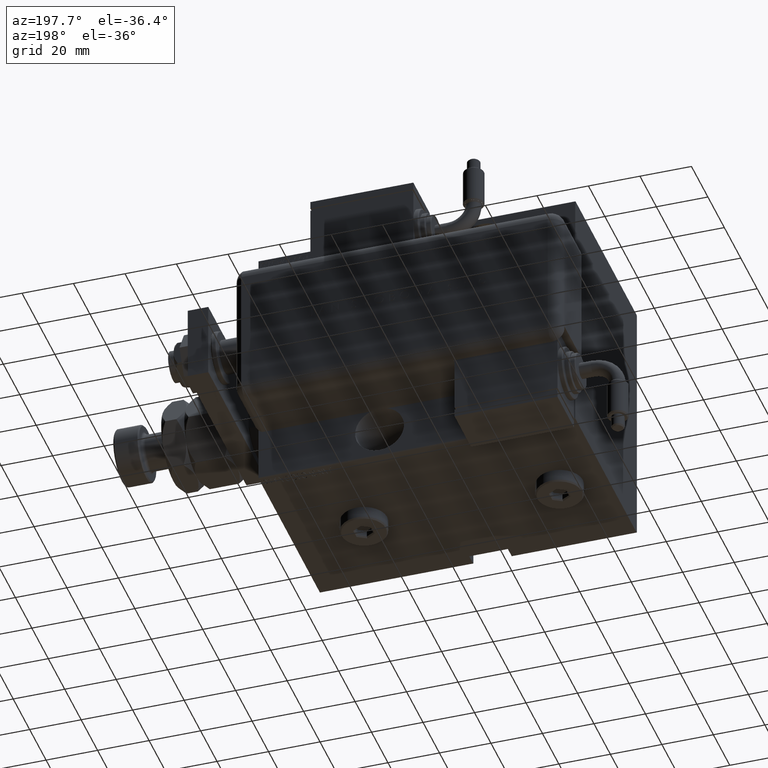
[diagram: clean part render]
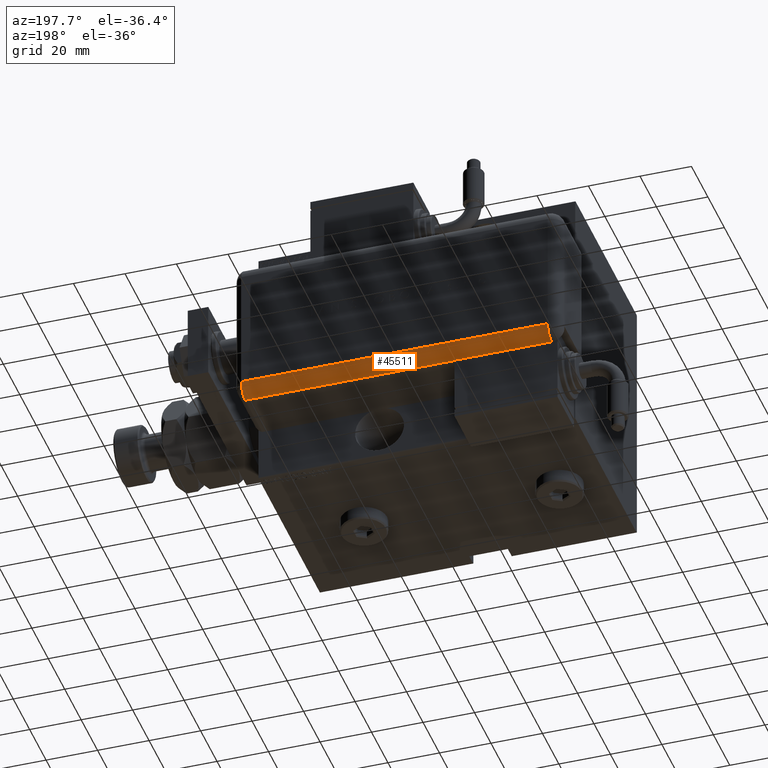
[diagram: same view with one face highlighted and labeled with its STEP entity id]
A machine part, auxiliary view. The second image highlights one B-rep face of the part: STEP entity #45511.
In plain terms, the highlighted cylindrical surface (edge-blend (fillet) strip) has radius 5 mm, axis along (-1, -0, -0).
Its self-contained STEP definition (entity closure, byte-faithful):
#615 = EDGE_CURVE ( 'NONE', #13388, #14352, #31162, .T. ) ;
#1524 = CARTESIAN_POINT ( 'NONE',  ( 23.99999999999999289, 25.79999999999998295, 124.0000000000000000 ) ) ;
#2714 = AXIS2_PLACEMENT_3D ( 'NONE', #47888, #37343, #46951 ) ;
#4403 = DIRECTION ( 'NONE',  ( -1.000000000000000000, 0.000000000000000000, 0.000000000000000000 ) ) ;
#6960 = VERTEX_POINT ( 'NONE', #1524 ) ;
#7767 = CARTESIAN_POINT ( 'NONE',  ( 23.99999999999999289, 20.79999999999998295, 5.000000000000004441 ) ) ;
#7891 = ORIENTED_EDGE ( 'NONE', *, *, #26750, .T. ) ;
#9620 = DIRECTION ( 'NONE',  ( 1.000000000000000000, -6.383782391594648845E-14, 0.000000000000000000 ) ) ;
#10806 = CYLINDRICAL_SURFACE ( 'NONE', #23408, 5.000000000000000888 ) ;
#11953 = DIRECTION ( 'NONE',  ( -0.000000000000000000, -0.000000000000000000, 1.000000000000000000 ) ) ;
#13388 = VERTEX_POINT ( 'NONE', #55900 ) ;
#13972 = ORIENTED_EDGE ( 'NONE', *, *, #34896, .F. ) ;
#14352 = VERTEX_POINT ( 'NONE', #45588 ) ;
#17999 = CIRCLE ( 'NONE', #2714, 5.000000000000000888 ) ;
#18183 = ORIENTED_EDGE ( 'NONE', *, *, #60616, .F. ) ;
#20797 = VECTOR ( 'NONE', #32252, 1000.000000000000000 ) ;
#21725 = CARTESIAN_POINT ( 'NONE',  ( 23.99999999999999289, 25.79999999999998295, 5.000000000000004441 ) ) ;
#22920 = VECTOR ( 'NONE', #33719, 1000.000000000000000 ) ;
#23408 = AXIS2_PLACEMENT_3D ( 'NONE', #29675, #34479, #4403 ) ;
#23501 = CIRCLE ( 'NONE', #54187, 5.000000000000000888 ) ;
#24341 = CARTESIAN_POINT ( 'NONE',  ( 23.99999999999999289, 20.79999999999998295, 43.00000000000000000 ) ) ;
#26750 = EDGE_CURVE ( 'NONE', #30372, #31728, #39171, .T. ) ;
#26829 = LINE ( 'NONE', #56290, #20797 ) ;
#29675 = CARTESIAN_POINT ( 'NONE',  ( 23.99999999999999289, 20.79999999999998295, 124.0000000000000000 ) ) ;
#29817 = EDGE_CURVE ( 'NONE', #30372, #36999, #33401, .T. ) ;
#30317 = FACE_OUTER_BOUND ( 'NONE', #52788, .T. ) ;
#30372 = VERTEX_POINT ( 'NONE', #30687 ) ;
#30687 = CARTESIAN_POINT ( 'NONE',  ( 28.99599839871871154, 21.00000000000000000, 5.000000000000004441 ) ) ;
#30850 = DIRECTION ( 'NONE',  ( -0.000000000000000000, -0.000000000000000000, 1.000000000000000000 ) ) ;
#31162 = LINE ( 'NONE', #54237, #59819 ) ;
#31728 = VERTEX_POINT ( 'NONE', #21725 ) ;
#32252 = DIRECTION ( 'NONE',  ( 0.000000000000000000, 0.000000000000000000, -1.000000000000000000 ) ) ;
#33401 = LINE ( 'NONE', #58084, #22920 ) ;
#33719 = DIRECTION ( 'NONE',  ( -0.000000000000000000, -0.000000000000000000, 1.000000000000000000 ) ) ;
#34479 = DIRECTION ( 'NONE',  ( 0.000000000000000000, 0.000000000000000000, -1.000000000000000000 ) ) ;
#34896 = EDGE_CURVE ( 'NONE', #14352, #6960, #17999, .T. ) ;
#36559 = DIRECTION ( 'NONE',  ( -1.000000000000000000, 0.000000000000000000, 0.000000000000000000 ) ) ;
#36999 = VERTEX_POINT ( 'NONE', #48796 ) ;
#37343 = DIRECTION ( 'NONE',  ( -0.000000000000000000, -0.000000000000000000, 1.000000000000000000 ) ) ;
#37700 = ORIENTED_EDGE ( 'NONE', *, *, #29817, .F. ) ;
#39171 = CIRCLE ( 'NONE', #52435, 5.000000000000000888 ) ;
#43780 = ORIENTED_EDGE ( 'NONE', *, *, #615, .F. ) ;
#44004 = ORIENTED_EDGE ( 'NONE', *, *, #47472, .F. ) ;
#45511 = ADVANCED_FACE ( 'NONE', ( #30317 ), #10806, .T. ) ;
#45588 = CARTESIAN_POINT ( 'NONE',  ( 28.99999999999999645, 20.79999999999998295, 124.0000000000000000 ) ) ;
#46951 = DIRECTION ( 'NONE',  ( -1.000000000000000000, 0.000000000000000000, 0.000000000000000000 ) ) ;
#47472 = EDGE_CURVE ( 'NONE', #36999, #13388, #23501, .T. ) ;
#47888 = CARTESIAN_POINT ( 'NONE',  ( 23.99999999999999289, 20.79999999999998295, 124.0000000000000000 ) ) ;
#48796 = CARTESIAN_POINT ( 'NONE',  ( 28.99599839871871154, 20.99999999999999289, 43.00000000000000000 ) ) ;
#52435 = AXIS2_PLACEMENT_3D ( 'NONE', #7767, #11953, #36559 ) ;
#52788 = EDGE_LOOP ( 'NONE', ( #44004, #37700, #7891, #18183, #13972, #43780 ) ) ;
#53461 = DIRECTION ( 'NONE',  ( -0.000000000000000000, 0.000000000000000000, -1.000000000000000000 ) ) ;
#54187 = AXIS2_PLACEMENT_3D ( 'NONE', #24341, #53461, #9620 ) ;
#54237 = CARTESIAN_POINT ( 'NONE',  ( 28.99999999999999645, 20.79999999999998295, 124.0000000000000000 ) ) ;
#55900 = CARTESIAN_POINT ( 'NONE',  ( 28.99999999999999645, 20.79999999999998295, 43.00000000000000000 ) ) ;
#56290 = CARTESIAN_POINT ( 'NONE',  ( 23.99999999999999289, 25.79999999999998295, 124.0000000000000000 ) ) ;
#58084 = CARTESIAN_POINT ( 'NONE',  ( 28.99599839871871154, 20.99999999999998224, 124.0000000000000000 ) ) ;
#59819 = VECTOR ( 'NONE', #30850, 1000.000000000000000 ) ;
#60616 = EDGE_CURVE ( 'NONE', #6960, #31728, #26829, .T. ) ;